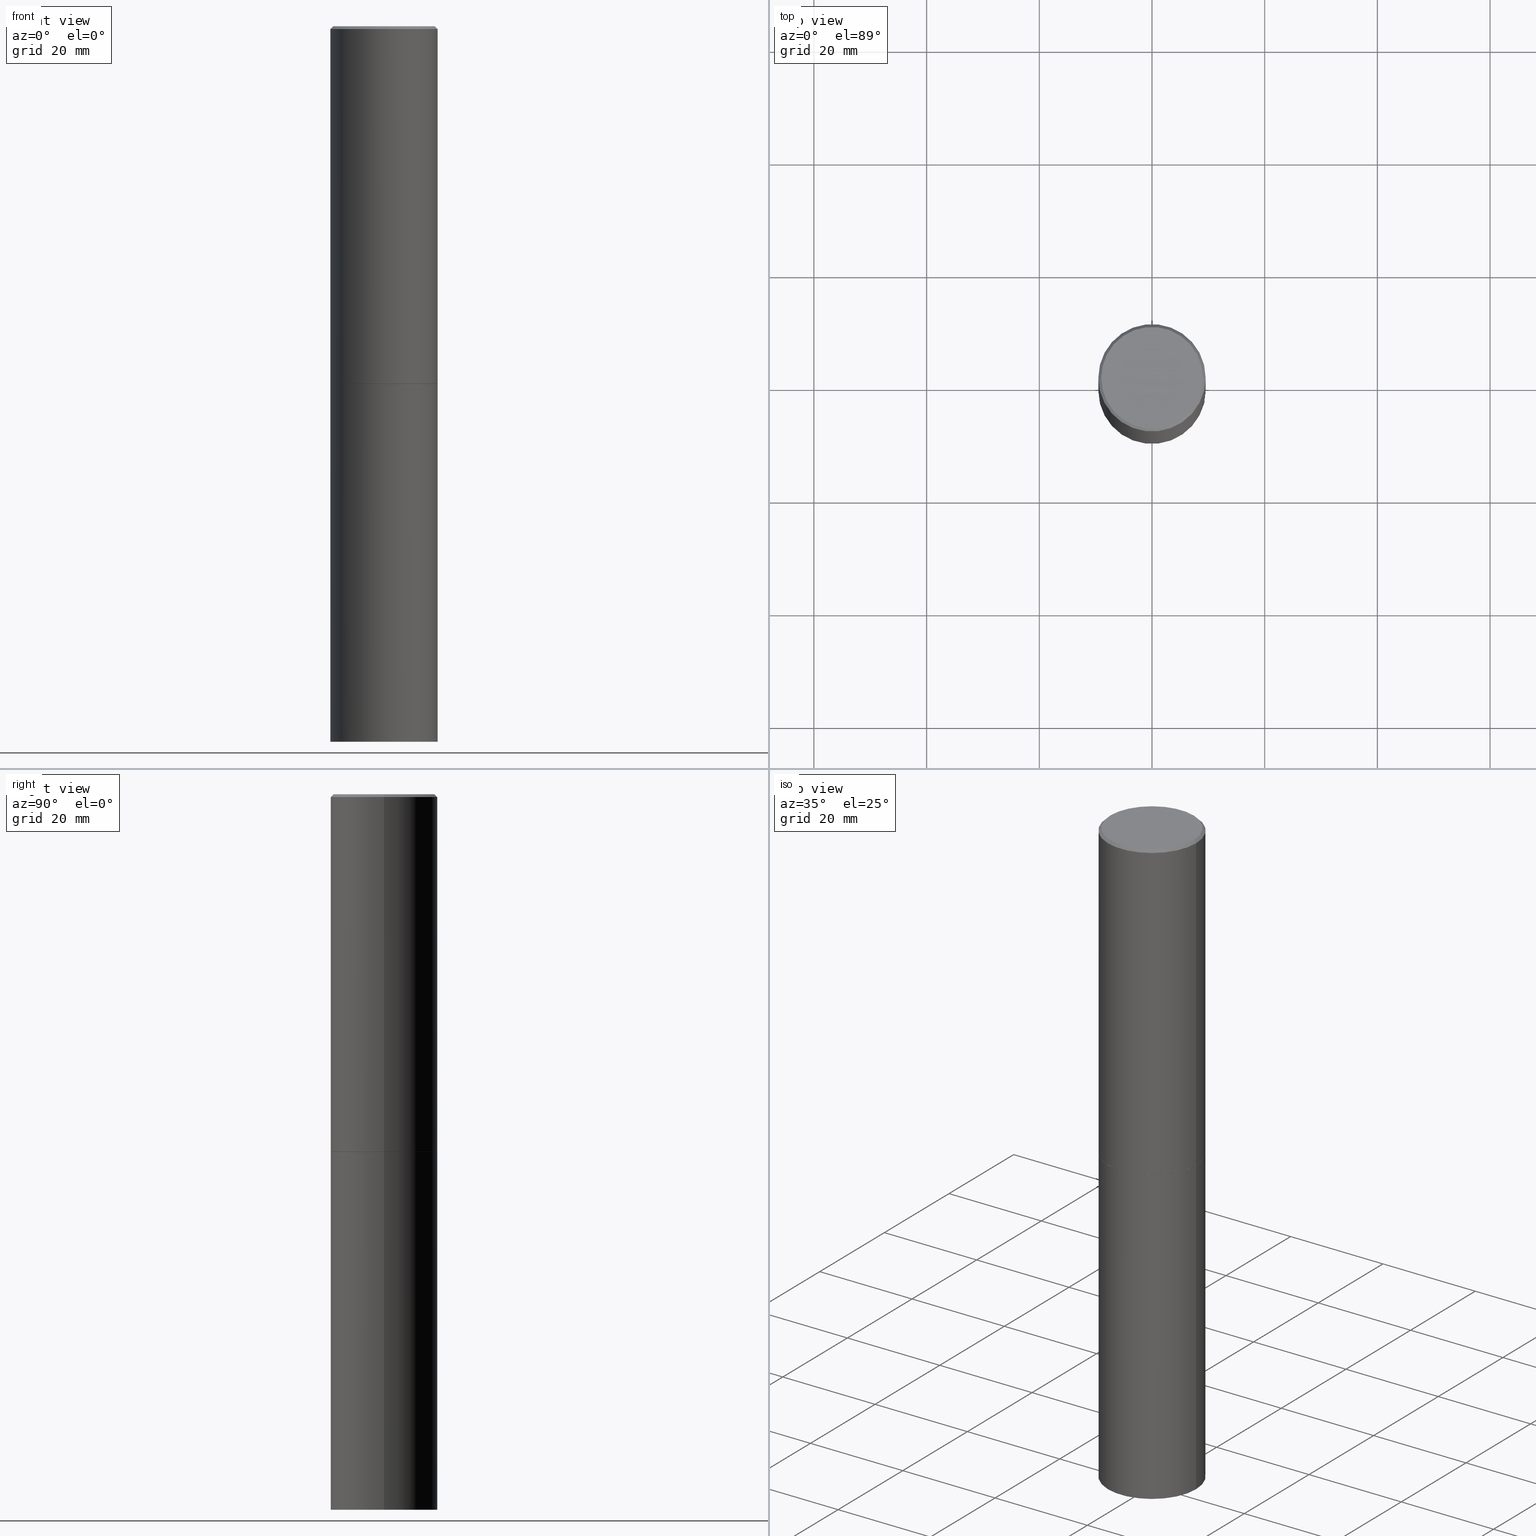
[diagram: canonical four-view strip — front | top / right | iso, engineering-drawing reading convention]
A machine part, canonical four-view strip (front | top / right | iso — engineering-drawing reading convention). The complete STEP part file that produces these views, byte-faithful:
ISO-10303-21;
HEADER;
FILE_DESCRIPTION (( 'STEP AP214' ),
    '1' );
FILE_NAME ('34758.STEP',
    '2024-05-03T16:23:27',
    ( '' ),
    ( '' ),
    'SwSTEP 2.0',
    'SolidWorks 2023',
    '' );
FILE_SCHEMA (( 'AUTOMOTIVE_DESIGN' ));
ENDSEC;

DATA;
#1 = CLOSED_SHELL ( 'NONE', ( #165, #99, #106, #232 ) ) ;
#2 = DIRECTION ( 'NONE',  ( -2.445468806185136597E-29, 3.491481338843145583E-15, 1.000000000000000000 ) ) ;
#3 = EDGE_LOOP ( 'NONE', ( #44, #196, #18, #119 ) ) ;
#4 = DIMENSIONAL_EXPONENTS ( 1.000000000000000000, 0.000000000000000000, 0.000000000000000000, 0.000000000000000000, 0.000000000000000000, 0.000000000000000000, 0.000000000000000000 ) ;
#5 =( NAMED_UNIT ( * ) SI_UNIT ( $, .STERADIAN. ) SOLID_ANGLE_UNIT ( ) );
#6 = PLANE ( 'NONE',  #245 ) ;
#7 = DIRECTION ( 'NONE',  ( -1.000000000000000000, 6.982962677686265922E-15, -4.876176775795935793E-29 ) ) ;
#8 = DIRECTION ( 'NONE',  ( 1.000000000000000000, -6.982962677686265922E-15, 4.876176775795935793E-29 ) ) ;
#9 = AXIS2_PLACEMENT_3D ( 'NONE', #180, #10, #185 ) ;
#10 = DIRECTION ( 'NONE',  ( -2.445468806185136597E-29, 3.491481338843145583E-15, 1.000000000000000000 ) ) ;
#11 = LINE ( 'NONE', #322, #63 ) ;
#12 =( LENGTH_UNIT ( ) NAMED_UNIT ( * ) SI_UNIT ( $, .METRE. ) );
#13 = CARTESIAN_POINT ( 'NONE',  ( 2.478951750578623026E-15, 0.3549999999999997602, -1.228804594064064785E-15 ) ) ;
#14 = CONICAL_SURFACE ( 'NONE', #39, 0.3749999999999997780, 0.7853981633974456145 ) ;
#15 = FACE_OUTER_BOUND ( 'NONE', #113, .T. ) ;
#16 = AXIS2_PLACEMENT_3D ( 'NONE', #265, #132, #150 ) ;
#17 = DIRECTION ( 'NONE',  ( -2.445468806185136597E-29, 3.491481338843145583E-15, 1.000000000000000000 ) ) ;
#18 = ORIENTED_EDGE ( 'NONE', *, *, #292, .T. ) ;
#19 = LENGTH_MEASURE_WITH_UNIT ( LENGTH_MEASURE( 0.02539999999999999897 ), #146 );
#20 = ORIENTED_EDGE ( 'NONE', *, *, #290, .T. ) ;
#21 = EDGE_CURVE ( 'NONE', #319, #22, #202, .T. ) ;
#22 = VERTEX_POINT ( 'NONE', #310 ) ;
#23 = DIRECTION ( 'NONE',  ( -2.445468806185136877E-29, 3.491481338843145188E-15, 1.000000000000000000 ) ) ;
#24 = EDGE_LOOP ( 'NONE', ( #53, #252, #329, #172 ) ) ;
#25 = ADVANCED_FACE ( 'NONE', ( #181 ), #287, .F. ) ;
#26 = PRODUCT_DEFINITION_CONTEXT ( 'detailed design', #117, 'design' ) ;
#27 = LINE ( 'NONE', #283, #178 ) ;
#28 = DIRECTION ( 'NONE',  ( -1.000000000000000000, 6.982962677686265922E-15, 0.000000000000000000 ) ) ;
#29 = FACE_OUTER_BOUND ( 'NONE', #145, .T. ) ;
#30 = EDGE_CURVE ( 'NONE', #328, #100, #192, .T. ) ;
#31 = DIRECTION ( 'NONE',  ( 2.445468806185136597E-29, -3.491481338843145583E-15, -1.000000000000000000 ) ) ;
#32 = AXIS2_PLACEMENT_3D ( 'NONE', #312, #87, #288 ) ;
#33 = UNCERTAINTY_MEASURE_WITH_UNIT (LENGTH_MEASURE( 1.000000000000000082E-05 ), #114, 'distance_accuracy_value', 'NONE');
#34 = DIRECTION ( 'NONE',  ( 1.000000000000000000, -6.982962677686266711E-15, 0.000000000000000000 ) ) ;
#35 = MANIFOLD_SOLID_BREP ( 'Body-Move/Copy2[2]', #109 ) ;
#36 = SURFACE_STYLE_USAGE ( .BOTH. , #67 ) ;
#37 = CARTESIAN_POINT ( 'NONE',  ( 4.890937612370292426E-31, -6.982962677686317493E-17, -0.02000000000000007674 ) ) ;
#38 = DIRECTION ( 'NONE',  ( 2.438088387897960049E-29, -3.491481338843145188E-15, -1.000000000000000000 ) ) ;
#39 = AXIS2_PLACEMENT_3D ( 'NONE', #263, #31, #131 ) ;
#40 = DIRECTION ( 'NONE',  ( 1.000000000000000000, -6.982962677686264344E-15, 0.000000000000000000 ) ) ;
#41 = CARTESIAN_POINT ( 'NONE',  ( 4.890937612370292426E-31, -6.982962677686317493E-17, -0.02000000000000007674 ) ) ;
#42 = DIRECTION ( 'NONE',  ( -1.000000000000000000, 6.982962677686265922E-15, -4.876176775795935793E-29 ) ) ;
#43 = ORIENTED_EDGE ( 'NONE', *, *, #334, .T. ) ;
#44 = ORIENTED_EDGE ( 'NONE', *, *, #21, .F. ) ;
#45 = VERTEX_POINT ( 'NONE', #82 ) ;
#46 = ADVANCED_FACE ( 'NONE', ( #286 ), #62, .T. ) ;
#47 = ORIENTED_EDGE ( 'NONE', *, *, #151, .F. ) ;
#48 = ORIENTED_EDGE ( 'NONE', *, *, #334, .F. ) ;
#49 = CARTESIAN_POINT ( 'NONE',  ( 1.222734403092568523E-28, -1.745740669421572989E-14, -5.000000000000000000 ) ) ;
#50 = ORIENTED_EDGE ( 'NONE', *, *, #236, .T. ) ;
#51 = DIRECTION ( 'NONE',  ( 1.000000000000000000, -6.982962677686266711E-15, 0.000000000000000000 ) ) ;
#52 = CARTESIAN_POINT ( 'NONE',  ( 0.000000000000000000, 0.000000000000000000, 0.000000000000000000 ) ) ;
#53 = ORIENTED_EDGE ( 'NONE', *, *, #226, .T. ) ;
#54 = AXIS2_PLACEMENT_3D ( 'NONE', #37, #161, #111 ) ;
#55 = CARTESIAN_POINT ( 'NONE',  ( 4.890937612370292426E-31, -6.982962677686317493E-17, -0.02000000000000007674 ) ) ;
#56 = AXIS2_PLACEMENT_3D ( 'NONE', #71, #17, #327 ) ;
#57 = STYLED_ITEM ( 'NONE', ( #188 ), #254 ) ;
#58 = ADVANCED_FACE ( 'NONE', ( #207 ), #173, .T. ) ;
#59 = CARTESIAN_POINT ( 'NONE',  ( 0.3750000000000000555, -1.134382286990137353E-14, -2.499000000000000998 ) ) ;
#60 = UNCERTAINTY_MEASURE_WITH_UNIT (LENGTH_MEASURE( 1.000000000000000082E-05 ), #98, 'distance_accuracy_value', 'NONE');
#61 = CARTESIAN_POINT ( 'NONE',  ( -0.3749999999999997780, 2.548781377355484746E-15, -0.02000000000000007674 ) ) ;
#62 = CYLINDRICAL_SURFACE ( 'NONE', #32, 0.3749999999999998890 ) ;
#63 = VECTOR ( 'NONE', #64, 39.37007874015748143 ) ;
#64 = DIRECTION ( 'NONE',  ( -2.445468806185136877E-29, 3.491481338843145188E-15, 1.000000000000000000 ) ) ;
#65 = CYLINDRICAL_SURFACE ( 'NONE', #275, 0.3750000000000000555 ) ;
#66 = CARTESIAN_POINT ( 'NONE',  ( 0.000000000000000000, 0.000000000000000000, 0.000000000000000000 ) ) ;
#67 = SURFACE_SIDE_STYLE ('',( #187 ) ) ;
#68 = FACE_OUTER_BOUND ( 'NONE', #194, .T. ) ;
#69 = FACE_OUTER_BOUND ( 'NONE', #78, .T. ) ;
#70 = APPLICATION_PROTOCOL_DEFINITION ( 'draft international standard', 'automotive_design', 1998, #257 ) ;
#71 = CARTESIAN_POINT ( 'NONE',  ( 6.113672015462842613E-29, -8.728703347107864943E-15, -2.500000000000000000 ) ) ;
#72 = EDGE_CURVE ( 'NONE', #74, #45, #218, .T. ) ;
#73 = PRODUCT_DEFINITION_FORMATION_WITH_SPECIFIED_SOURCE ( 'ANY', '', #225, .NOT_KNOWN. ) ;
#74 = VERTEX_POINT ( 'NONE', #182 ) ;
#75 = DIRECTION ( 'NONE',  ( 1.000000000000000000, 0.000000000000000000, 0.000000000000000000 ) ) ;
#76 = ORIENTED_EDGE ( 'NONE', *, *, #83, .F. ) ;
#77 =( NAMED_UNIT ( * ) PLANE_ANGLE_UNIT ( ) SI_UNIT ( $, .RADIAN. ) );
#78 = EDGE_LOOP ( 'NONE', ( #121, #136, #20, #168 ) ) ;
#79 = CARTESIAN_POINT ( 'NONE',  ( 0.000000000000000000, 0.000000000000000000, 0.000000000000000000 ) ) ;
#80 = COLOUR_RGB ( '',0.7921568627450980005, 0.8196078431372548767, 0.9333333333333333481 ) ;
#81 = EDGE_CURVE ( 'NONE', #74, #22, #262, .T. ) ;
#82 = CARTESIAN_POINT ( 'NONE',  ( 0.3549999999999997602, -2.538996582575039076E-15, 2.134256245051960239E-17 ) ) ;
#83 = EDGE_CURVE ( 'NONE', #147, #319, #209, .T. ) ;
#84 = DIRECTION ( 'NONE',  ( 1.000000000000000000, -6.982962677686264344E-15, 0.000000000000000000 ) ) ;
#85 =( GEOMETRIC_REPRESENTATION_CONTEXT ( 3 ) GLOBAL_UNCERTAINTY_ASSIGNED_CONTEXT ( ( #60 ) ) GLOBAL_UNIT_ASSIGNED_CONTEXT ( ( #98, #77, #251 ) ) REPRESENTATION_CONTEXT ( 'NONE', 'WORKASPACE' ) );
#86 = AXIS2_PLACEMENT_3D ( 'NONE', #158, #108, #156 ) ;
#87 = DIRECTION ( 'NONE',  ( -2.445468806185136597E-29, 3.491481338843145583E-15, 1.000000000000000000 ) ) ;
#88 = CARTESIAN_POINT ( 'NONE',  ( 2.618611004132411153E-15, 0.3749999999999912847, -2.500000000000001332 ) ) ;
#89 = CYLINDRICAL_SURFACE ( 'NONE', #284, 0.3749999999999998890 ) ;
#90 = EDGE_CURVE ( 'NONE', #272, #323, #127, .T. ) ;
#91 =( GEOMETRIC_REPRESENTATION_CONTEXT ( 3 ) GLOBAL_UNCERTAINTY_ASSIGNED_CONTEXT ( ( #311 ) ) GLOBAL_UNIT_ASSIGNED_CONTEXT ( ( #325, #213, #5 ) ) REPRESENTATION_CONTEXT ( 'NONE', 'WORKASPACE' ) );
#92 = SURFACE_STYLE_USAGE ( .BOTH. , #240 ) ;
#93 = ADVANCED_FACE ( 'NONE', ( #107 ), #14, .T. ) ;
#94 = DIRECTION ( 'NONE',  ( 1.000000000000000000, -6.982962677686265922E-15, 0.000000000000000000 ) ) ;
#95 = DIRECTION ( 'NONE',  ( -2.445468806185136597E-29, 3.491481338843145583E-15, 1.000000000000000000 ) ) ;
#96 =( NAMED_UNIT ( * ) PLANE_ANGLE_UNIT ( ) SI_UNIT ( $, .RADIAN. ) );
#97 = ORIENTED_EDGE ( 'NONE', *, *, #83, .T. ) ;
#98 =( CONVERSION_BASED_UNIT ( 'INCH', #19 ) LENGTH_UNIT ( ) NAMED_UNIT ( #195 ) );
#99 = ADVANCED_FACE ( 'NONE', ( #29 ), #6, .T. ) ;
#100 = VERTEX_POINT ( 'NONE', #203 ) ;
#101 =( GEOMETRIC_REPRESENTATION_CONTEXT ( 3 ) GLOBAL_UNCERTAINTY_ASSIGNED_CONTEXT ( ( #33 ) ) GLOBAL_UNIT_ASSIGNED_CONTEXT ( ( #114, #96, #318 ) ) REPRESENTATION_CONTEXT ( 'NONE', 'WORKASPACE' ) );
#102 = CARTESIAN_POINT ( 'NONE',  ( -0.3750000000000000555, -1.042851976156142014E-14, -2.500000000000000000 ) ) ;
#103 = CIRCLE ( 'NONE', #139, 0.3750000000000000555 ) ;
#104 = AXIS2_PLACEMENT_3D ( 'NONE', #88, #235, #7 ) ;
#105 = DIRECTION ( 'NONE',  ( -0.7071067811870063169, 7.493145998872012346E-15, 0.7071067811860887176 ) ) ;
#106 = ADVANCED_FACE ( 'NONE', ( #184 ), #153, .F. ) ;
#107 = FACE_OUTER_BOUND ( 'NONE', #300, .T. ) ;
#108 = DIRECTION ( 'NONE',  ( -2.445468806185136597E-29, 3.491481338843145583E-15, 1.000000000000000000 ) ) ;
#109 = CLOSED_SHELL ( 'NONE', ( #58, #46, #144, #93, #120, #241, #204, #25 ) ) ;
#110 = CARTESIAN_POINT ( 'NONE',  ( 1.222734403092568523E-28, -1.745740669421572989E-14, -5.000000000000000000 ) ) ;
#111 = DIRECTION ( 'NONE',  ( 1.000000000000000000, -6.982962677686265922E-15, 0.000000000000000000 ) ) ;
#112 = CARTESIAN_POINT ( 'NONE',  ( 0.3739999999999999991, -1.134033138856252737E-14, -2.499999999999999556 ) ) ;
#113 = EDGE_LOOP ( 'NONE', ( #278, #48 ) ) ;
#114 =( CONVERSION_BASED_UNIT ( 'INCH', #324 ) LENGTH_UNIT ( ) NAMED_UNIT ( #304 ) );
#115 = VECTOR ( 'NONE', #289, 39.37007874015748854 ) ;
#116 = PLANE ( 'NONE',  #193 ) ;
#117 = APPLICATION_CONTEXT ( 'automotive_design' ) ;
#118 = LENGTH_MEASURE_WITH_UNIT ( LENGTH_MEASURE( 0.02539999999999999897 ), #162 );
#119 = ORIENTED_EDGE ( 'NONE', *, *, #174, .F. ) ;
#120 = ADVANCED_FACE ( 'NONE', ( #315 ), #89, .T. ) ;
#121 = ORIENTED_EDGE ( 'NONE', *, *, #269, .F. ) ;
#122 = ORIENTED_EDGE ( 'NONE', *, *, #226, .F. ) ;
#123 = CARTESIAN_POINT ( 'NONE',  ( 0.3749999999999998890, -2.618611004132349228E-15, 1.828566290923475362E-29 ) ) ;
#124 = EDGE_CURVE ( 'NONE', #45, #247, #27, .T. ) ;
#125 = ORIENTED_EDGE ( 'NONE', *, *, #290, .F. ) ;
#126 = APPLICATION_PROTOCOL_DEFINITION ( 'draft international standard', 'automotive_design', 1998, #117 ) ;
#127 = CIRCLE ( 'NONE', #332, 0.3750000000000000555 ) ;
#128 = EDGE_CURVE ( 'NONE', #301, #147, #205, .T. ) ;
#129 = DIRECTION ( 'NONE',  ( 0.7071067811865455743, -7.319954787623248157E-15, -0.7071067811865493491 ) ) ;
#130 = CARTESIAN_POINT ( 'NONE',  ( -0.3739999999999999991, -6.065975061016867852E-15, -2.499999999999999556 ) ) ;
#131 = DIRECTION ( 'NONE',  ( -1.000000000000000000, 6.982962677686265922E-15, 0.000000000000000000 ) ) ;
#132 = DIRECTION ( 'NONE',  ( -2.445468806185136597E-29, 3.491481338843145583E-15, 1.000000000000000000 ) ) ;
#133 = MECHANICAL_DESIGN_GEOMETRIC_PRESENTATION_REPRESENTATION (  '', ( #306 ), #91 ) ;
#134 = CARTESIAN_POINT ( 'NONE',  ( 2.618611004132472290E-15, 0.3749999999999825695, -5.000000000000000888 ) ) ;
#135 = DIRECTION ( 'NONE',  ( 1.000000000000000000, -6.982962677686265922E-15, 4.876176775795935793E-29 ) ) ;
#136 = ORIENTED_EDGE ( 'NONE', *, *, #313, .T. ) ;
#137 = CARTESIAN_POINT ( 'NONE',  ( 6.113672015462842613E-29, -8.728703347107864943E-15, -2.500000000000000000 ) ) ;
#138 = PRODUCT_RELATED_PRODUCT_CATEGORY ( 'part', '', ( #225 ) ) ;
#139 = AXIS2_PLACEMENT_3D ( 'NONE', #49, #296, #51 ) ;
#140 = DIRECTION ( 'NONE',  ( 0.7071067811870063169, -2.468850131087062801E-15, 0.7071067811860887176 ) ) ;
#141 = VERTEX_POINT ( 'NONE', #59 ) ;
#142 = CARTESIAN_POINT ( 'NONE',  ( 0.3750000000000000555, -2.007601769834807990E-14, -5.000000000000000000 ) ) ;
#143 = CONICAL_SURFACE ( 'NONE', #333, 0.3749999999999997780, 0.7853981633974456145 ) ;
#144 = ADVANCED_FACE ( 'NONE', ( #175 ), #143, .T. ) ;
#145 = EDGE_LOOP ( 'NONE', ( #253, #279 ) ) ;
#146 =( LENGTH_UNIT ( ) NAMED_UNIT ( * ) SI_UNIT ( $, .METRE. ) );
#147 = VERTEX_POINT ( 'NONE', #130 ) ;
#148 = ORIENTED_EDGE ( 'NONE', *, *, #157, .F. ) ;
#149 = PRODUCT_DEFINITION_SHAPE ( 'NONE', 'NONE',  #216 ) ;
#150 = DIRECTION ( 'NONE',  ( 1.000000000000000000, -6.982962677686266711E-15, 4.876231632511991546E-29 ) ) ;
#151 = EDGE_CURVE ( 'NONE', #319, #141, #316, .T. ) ;
#152 = COLOUR_RGB ( '',0.7921568627450980005, 0.8196078431372548767, 0.9333333333333333481 ) ;
#153 = PLANE ( 'NONE',  #104 ) ;
#154 = ORIENTED_EDGE ( 'NONE', *, *, #280, .T. ) ;
#155 = DIRECTION ( 'NONE',  ( -2.445468806185136597E-29, 3.491481338843145583E-15, 1.000000000000000000 ) ) ;
#156 = DIRECTION ( 'NONE',  ( 1.000000000000000000, -6.982962677686268288E-15, 0.000000000000000000 ) ) ;
#157 = EDGE_CURVE ( 'NONE', #45, #74, #176, .T. ) ;
#158 = CARTESIAN_POINT ( 'NONE',  ( 6.113672015462840371E-29, -8.728703347107863365E-15, -2.499999999999999556 ) ) ;
#159 = DIRECTION ( 'NONE',  ( 1.000000000000000000, -6.982962677686264344E-15, 0.000000000000000000 ) ) ;
#160 = EDGE_CURVE ( 'NONE', #301, #141, #320, .T. ) ;
#161 = DIRECTION ( 'NONE',  ( -2.445468806185136597E-29, 3.491481338843145583E-15, 1.000000000000000000 ) ) ;
#162 =( LENGTH_UNIT ( ) NAMED_UNIT ( * ) SI_UNIT ( $, .METRE. ) );
#163 = CYLINDRICAL_SURFACE ( 'NONE', #258, 0.3750000000000000555 ) ;
#164 = DIRECTION ( 'NONE',  ( -2.445468806185136597E-29, 3.491481338843145583E-15, 1.000000000000000000 ) ) ;
#165 = ADVANCED_FACE ( 'NONE', ( #295 ), #163, .T. ) ;
#166 = ORIENTED_EDGE ( 'NONE', *, *, #124, .F. ) ;
#167 = AXIS2_PLACEMENT_3D ( 'NONE', #219, #186, #271 ) ;
#168 = ORIENTED_EDGE ( 'NONE', *, *, #30, .F. ) ;
#169 = ORIENTED_EDGE ( 'NONE', *, *, #72, .F. ) ;
#170 = ORIENTED_EDGE ( 'NONE', *, *, #269, .T. ) ;
#171 = CIRCLE ( 'NONE', #177, 0.3750000000000000555 ) ;
#172 = ORIENTED_EDGE ( 'NONE', *, *, #292, .F. ) ;
#173 = CONICAL_SURFACE ( 'NONE', #86, 0.3739999999999999991, 0.7853981633980972044 ) ;
#174 = EDGE_CURVE ( 'NONE', #22, #247, #229, .T. ) ;
#175 = FACE_OUTER_BOUND ( 'NONE', #277, .T. ) ;
#176 = CIRCLE ( 'NONE', #9, 0.3549999999999997602 ) ;
#177 = AXIS2_PLACEMENT_3D ( 'NONE', #215, #95, #159 ) ;
#178 = VECTOR ( 'NONE', #129, 39.37007874015748854 ) ;
#179 = PRESENTATION_LAYER_ASSIGNMENT (  '', '', ( #57 ) ) ;
#180 = CARTESIAN_POINT ( 'NONE',  ( -5.219257071676098903E-46, 7.451715851902235727E-32, 2.134256245050205639E-17 ) ) ;
#181 = FACE_OUTER_BOUND ( 'NONE', #221, .T. ) ;
#182 = CARTESIAN_POINT ( 'NONE',  ( -0.3549999999999997602, 2.513866563967053491E-15, 2.134256245048459668E-17 ) ) ;
#183 = CARTESIAN_POINT ( 'NONE',  ( -0.3739999999999999991, -6.071273515365087887E-15, -2.499999999999999556 ) ) ;
#184 = FACE_OUTER_BOUND ( 'NONE', #326, .T. ) ;
#185 = DIRECTION ( 'NONE',  ( 1.000000000000000000, -6.982962677686266711E-15, 4.876231632511991546E-29 ) ) ;
#186 = DIRECTION ( 'NONE',  ( -2.445468806185136597E-29, 3.491481338843145583E-15, 1.000000000000000000 ) ) ;
#187 = SURFACE_STYLE_FILL_AREA ( #270 ) ;
#188 = PRESENTATION_STYLE_ASSIGNMENT (( #92 ) ) ;
#189 = DIRECTION ( 'NONE',  ( -2.445468806185136597E-29, 3.491481338843145583E-15, 1.000000000000000000 ) ) ;
#190 = LINE ( 'NONE', #123, #244 ) ;
#191 = AXIS2_PLACEMENT_3D ( 'NONE', #41, #243, #94 ) ;
#192 = CIRCLE ( 'NONE', #56, 0.3750000000000000555 ) ;
#193 = AXIS2_PLACEMENT_3D ( 'NONE', #137, #294, #238 ) ;
#194 = EDGE_LOOP ( 'NONE', ( #76, #43, #220, #47 ) ) ;
#195 = DIMENSIONAL_EXPONENTS ( 1.000000000000000000, 0.000000000000000000, 0.000000000000000000, 0.000000000000000000, 0.000000000000000000, 0.000000000000000000, 0.000000000000000000 ) ;
#196 = ORIENTED_EDGE ( 'NONE', *, *, #151, .T. ) ;
#197 = CARTESIAN_POINT ( 'NONE',  ( -0.3750000000000000555, -1.732985487172565737E-15, -2.499000000000000998 ) ) ;
#198 = ORIENTED_EDGE ( 'NONE', *, *, #81, .F. ) ;
#199 = ADVANCED_BREP_SHAPE_REPRESENTATION ( '34758', ( #254, #35, #228 ), #85 ) ;
#200 = AXIS2_PLACEMENT_3D ( 'NONE', #230, #2, #307 ) ;
#201 = DIRECTION ( 'NONE',  ( -2.445468806185136597E-29, 3.491481338843145583E-15, 1.000000000000000000 ) ) ;
#202 = LINE ( 'NONE', #233, #309 ) ;
#203 = CARTESIAN_POINT ( 'NONE',  ( 0.3750000000000000555, -1.134731435124021338E-14, -2.500000000000000000 ) ) ;
#204 = ADVANCED_FACE ( 'NONE', ( #15 ), #116, .F. ) ;
#205 = CIRCLE ( 'NONE', #200, 0.3739999999999999991 ) ;
#206 = DIRECTION ( 'NONE',  ( -2.445468806185136877E-29, 3.491481338843145188E-15, 1.000000000000000000 ) ) ;
#207 = FACE_OUTER_BOUND ( 'NONE', #336, .T. ) ;
#208 = DIRECTION ( 'NONE',  ( 2.438088387897960049E-29, -3.491481338843145188E-15, -1.000000000000000000 ) ) ;
#209 = LINE ( 'NONE', #183, #285 ) ;
#210 = CIRCLE ( 'NONE', #260, 0.3750000000000000555 ) ;
#211 = CIRCLE ( 'NONE', #264, 0.3739999999999999991 ) ;
#212 = FILL_AREA_STYLE ('',( #268 ) ) ;
#213 =( NAMED_UNIT ( * ) PLANE_ANGLE_UNIT ( ) SI_UNIT ( $, .RADIAN. ) );
#214 = CARTESIAN_POINT ( 'NONE',  ( 6.111226546656659252E-29, -8.725211865769023513E-15, -2.499000000000000998 ) ) ;
#215 = CARTESIAN_POINT ( 'NONE',  ( 6.113672015462842613E-29, -8.728703347107864943E-15, -2.500000000000000000 ) ) ;
#216 = PRODUCT_DEFINITION ( 'UNKNOWN', '', #73, #26 ) ;
#217 = ORIENTED_EDGE ( 'NONE', *, *, #90, .T. ) ;
#218 = CIRCLE ( 'NONE', #16, 0.3549999999999997602 ) ;
#219 = CARTESIAN_POINT ( 'NONE',  ( 6.113672015462840371E-29, -8.728703347107863365E-15, -2.499999999999999556 ) ) ;
#220 = ORIENTED_EDGE ( 'NONE', *, *, #160, .T. ) ;
#221 = EDGE_LOOP ( 'NONE', ( #259, #302 ) ) ;
#222 = VECTOR ( 'NONE', #23, 39.37007874015748143 ) ;
#223 = VECTOR ( 'NONE', #140, 39.37007874015748143 ) ;
#224 = CARTESIAN_POINT ( 'NONE',  ( -0.3750000000000000555, -1.042851976156142014E-14, -5.000000000000000000 ) ) ;
#225 = PRODUCT ( '34758', '34758', '', ( #273 ) ) ;
#226 = EDGE_CURVE ( 'NONE', #141, #319, #210, .T. ) ;
#227 = DIRECTION ( 'NONE',  ( -2.445468806185136597E-29, 3.491481338843145583E-15, 1.000000000000000000 ) ) ;
#228 = AXIS2_PLACEMENT_3D ( 'NONE', #79, #337, #75 ) ;
#229 = CIRCLE ( 'NONE', #191, 0.3749999999999997780 ) ;
#230 = CARTESIAN_POINT ( 'NONE',  ( 6.113672015462840371E-29, -8.728703347107863365E-15, -2.499999999999999556 ) ) ;
#231 = CARTESIAN_POINT ( 'NONE',  ( 6.111226546656659252E-29, -8.725211865769023513E-15, -2.499000000000000998 ) ) ;
#232 = ADVANCED_FACE ( 'NONE', ( #69 ), #65, .T. ) ;
#233 = CARTESIAN_POINT ( 'NONE',  ( -0.3749999999999998890, 2.664535259100374908E-15, -1.844600658845589038E-29 ) ) ;
#234 = AXIS2_PLACEMENT_3D ( 'NONE', #13, #38, #42 ) ;
#235 = DIRECTION ( 'NONE',  ( 2.438088387897960049E-29, -3.491481338843145188E-15, -1.000000000000000000 ) ) ;
#236 = EDGE_CURVE ( 'NONE', #247, #22, #298, .T. ) ;
#237 = LINE ( 'NONE', #335, #222 ) ;
#238 = DIRECTION ( 'NONE',  ( 1.000000000000000000, -6.982962677686265922E-15, 4.876176775795935793E-29 ) ) ;
#239 = MECHANICAL_DESIGN_GEOMETRIC_PRESENTATION_REPRESENTATION (  '', ( #57 ), #101 ) ;
#240 = SURFACE_SIDE_STYLE ('',( #317 ) ) ;
#241 = ADVANCED_FACE ( 'NONE', ( #68 ), #299, .T. ) ;
#242 = CARTESIAN_POINT ( 'NONE',  ( 0.3749999999999997780, -2.642516375941186056E-15, -0.02000000000000007674 ) ) ;
#243 = DIRECTION ( 'NONE',  ( -2.445468806185136597E-29, 3.491481338843145583E-15, 1.000000000000000000 ) ) ;
#244 = VECTOR ( 'NONE', #331, 39.37007874015748143 ) ;
#245 = AXIS2_PLACEMENT_3D ( 'NONE', #134, #208, #314 ) ;
#246 = AXIS2_PLACEMENT_3D ( 'NONE', #231, #308, #84 ) ;
#247 = VERTEX_POINT ( 'NONE', #242 ) ;
#248 = CARTESIAN_POINT ( 'NONE',  ( 0.3739999999999999991, -1.134033138856252737E-14, -2.499999999999999556 ) ) ;
#249 = ORIENTED_EDGE ( 'NONE', *, *, #280, .F. ) ;
#250 = ORIENTED_EDGE ( 'NONE', *, *, #124, .T. ) ;
#251 =( NAMED_UNIT ( * ) SI_UNIT ( $, .STERADIAN. ) SOLID_ANGLE_UNIT ( ) );
#252 = ORIENTED_EDGE ( 'NONE', *, *, #21, .T. ) ;
#253 = ORIENTED_EDGE ( 'NONE', *, *, #90, .F. ) ;
#254 = MANIFOLD_SOLID_BREP ( 'Body-Move/Copy2[1]', #1 ) ;
#255 = CARTESIAN_POINT ( 'NONE',  ( 6.113672015462840371E-29, -8.728703347107863365E-15, -2.499999999999999556 ) ) ;
#256 = DIRECTION ( 'NONE',  ( 1.000000000000000000, -6.982962677686266711E-15, 4.876176775795935793E-29 ) ) ;
#257 = APPLICATION_CONTEXT ( 'automotive_design' ) ;
#258 = AXIS2_PLACEMENT_3D ( 'NONE', #266, #291, #8 ) ;
#259 = ORIENTED_EDGE ( 'NONE', *, *, #72, .T. ) ;
#260 = AXIS2_PLACEMENT_3D ( 'NONE', #214, #189, #40 ) ;
#261 = DIRECTION ( 'NONE',  ( 2.445468806185136597E-29, -3.491481338843145583E-15, -1.000000000000000000 ) ) ;
#262 = LINE ( 'NONE', #61, #115 ) ;
#263 = CARTESIAN_POINT ( 'NONE',  ( 4.890937612370292426E-31, -6.982962677686317493E-17, -0.02000000000000007674 ) ) ;
#264 = AXIS2_PLACEMENT_3D ( 'NONE', #255, #227, #303 ) ;
#265 = CARTESIAN_POINT ( 'NONE',  ( -5.219257071676098903E-46, 7.451715851902235727E-32, 2.134256245050205639E-17 ) ) ;
#266 = CARTESIAN_POINT ( 'NONE',  ( 0.000000000000000000, 0.000000000000000000, 0.000000000000000000 ) ) ;
#267 = PRESENTATION_STYLE_ASSIGNMENT (( #36 ) ) ;
#268 = FILL_AREA_STYLE_COLOUR ( '', #152 ) ;
#269 = EDGE_CURVE ( 'NONE', #323, #328, #11, .T. ) ;
#270 = FILL_AREA_STYLE ('',( #274 ) ) ;
#271 = DIRECTION ( 'NONE',  ( 1.000000000000000000, -6.982962677686268288E-15, 0.000000000000000000 ) ) ;
#272 = VERTEX_POINT ( 'NONE', #142 ) ;
#273 = PRODUCT_CONTEXT ( 'NONE', #257, 'mechanical' ) ;
#274 = FILL_AREA_STYLE_COLOUR ( '', #80 ) ;
#275 = AXIS2_PLACEMENT_3D ( 'NONE', #66, #164, #135 ) ;
#276 = ORIENTED_EDGE ( 'NONE', *, *, #128, .T. ) ;
#277 = EDGE_LOOP ( 'NONE', ( #148, #250, #50, #198 ) ) ;
#278 = ORIENTED_EDGE ( 'NONE', *, *, #128, .F. ) ;
#279 = ORIENTED_EDGE ( 'NONE', *, *, #313, .F. ) ;
#280 = EDGE_CURVE ( 'NONE', #100, #328, #171, .T. ) ;
#281 = PRESENTATION_LAYER_ASSIGNMENT (  '', '', ( #306 ) ) ;
#282 = ORIENTED_EDGE ( 'NONE', *, *, #174, .T. ) ;
#283 = CARTESIAN_POINT ( 'NONE',  ( 0.3749999999999997780, -2.642516375941186056E-15, -0.02000000000000007674 ) ) ;
#284 = AXIS2_PLACEMENT_3D ( 'NONE', #52, #201, #256 ) ;
#285 = VECTOR ( 'NONE', #105, 39.37007874015748143 ) ;
#286 = FACE_OUTER_BOUND ( 'NONE', #24, .T. ) ;
#287 = PLANE ( 'NONE',  #234 ) ;
#288 = DIRECTION ( 'NONE',  ( 1.000000000000000000, -6.982962677686266711E-15, 4.876176775795935793E-29 ) ) ;
#289 = DIRECTION ( 'NONE',  ( -0.7071067811865455743, 2.468850131082236945E-15, -0.7071067811865493491 ) ) ;
#290 = EDGE_CURVE ( 'NONE', #272, #100, #237, .T. ) ;
#291 = DIRECTION ( 'NONE',  ( -2.445468806185136597E-29, 3.491481338843145583E-15, 1.000000000000000000 ) ) ;
#292 = EDGE_CURVE ( 'NONE', #141, #247, #190, .T. ) ;
#293 = EDGE_LOOP ( 'NONE', ( #217, #170, #249, #125 ) ) ;
#294 = DIRECTION ( 'NONE',  ( -2.438088387897960049E-29, 3.491481338843145188E-15, 1.000000000000000000 ) ) ;
#295 = FACE_OUTER_BOUND ( 'NONE', #293, .T. ) ;
#296 = DIRECTION ( 'NONE',  ( -2.445468806185136597E-29, 3.491481338843145583E-15, 1.000000000000000000 ) ) ;
#297 = ORIENTED_EDGE ( 'NONE', *, *, #160, .F. ) ;
#298 = CIRCLE ( 'NONE', #54, 0.3749999999999997780 ) ;
#299 = CONICAL_SURFACE ( 'NONE', #167, 0.3739999999999999991, 0.7853981633980972044 ) ;
#300 = EDGE_LOOP ( 'NONE', ( #166, #169, #330, #282 ) ) ;
#301 = VERTEX_POINT ( 'NONE', #248 ) ;
#302 = ORIENTED_EDGE ( 'NONE', *, *, #157, .T. ) ;
#303 = DIRECTION ( 'NONE',  ( 1.000000000000000000, -6.982962677686268288E-15, 0.000000000000000000 ) ) ;
#304 = DIMENSIONAL_EXPONENTS ( 1.000000000000000000, 0.000000000000000000, 0.000000000000000000, 0.000000000000000000, 0.000000000000000000, 0.000000000000000000, 0.000000000000000000 ) ;
#305 = SHAPE_DEFINITION_REPRESENTATION ( #149, #199 ) ;
#306 = STYLED_ITEM ( 'NONE', ( #267 ), #35 ) ;
#307 = DIRECTION ( 'NONE',  ( 1.000000000000000000, -6.982962677686268288E-15, 0.000000000000000000 ) ) ;
#308 = DIRECTION ( 'NONE',  ( -2.445468806185136597E-29, 3.491481338843145583E-15, 1.000000000000000000 ) ) ;
#309 = VECTOR ( 'NONE', #206, 39.37007874015748143 ) ;
#310 = CARTESIAN_POINT ( 'NONE',  ( -0.3749999999999997780, 2.548781377355484746E-15, -0.02000000000000007674 ) ) ;
#311 = UNCERTAINTY_MEASURE_WITH_UNIT (LENGTH_MEASURE( 1.000000000000000082E-05 ), #325, 'distance_accuracy_value', 'NONE');
#312 = CARTESIAN_POINT ( 'NONE',  ( 0.000000000000000000, 0.000000000000000000, 0.000000000000000000 ) ) ;
#313 = EDGE_CURVE ( 'NONE', #323, #272, #103, .T. ) ;
#314 = DIRECTION ( 'NONE',  ( -1.000000000000000000, 6.982962677686265922E-15, -4.876176775795935793E-29 ) ) ;
#315 = FACE_OUTER_BOUND ( 'NONE', #3, .T. ) ;
#316 = CIRCLE ( 'NONE', #246, 0.3750000000000000555 ) ;
#317 = SURFACE_STYLE_FILL_AREA ( #212 ) ;
#318 =( NAMED_UNIT ( * ) SI_UNIT ( $, .STERADIAN. ) SOLID_ANGLE_UNIT ( ) );
#319 = VERTEX_POINT ( 'NONE', #197 ) ;
#320 = LINE ( 'NONE', #112, #223 ) ;
#321 = ORIENTED_EDGE ( 'NONE', *, *, #30, .T. ) ;
#322 = CARTESIAN_POINT ( 'NONE',  ( -0.3750000000000000555, 2.664535259100376091E-15, -1.844600658845589598E-29 ) ) ;
#323 = VERTEX_POINT ( 'NONE', #224 ) ;
#324 = LENGTH_MEASURE_WITH_UNIT ( LENGTH_MEASURE( 0.02539999999999999897 ), #12 );
#325 =( CONVERSION_BASED_UNIT ( 'INCH', #118 ) LENGTH_UNIT ( ) NAMED_UNIT ( #4 ) );
#326 = EDGE_LOOP ( 'NONE', ( #154, #321 ) ) ;
#327 = DIRECTION ( 'NONE',  ( 1.000000000000000000, -6.982962677686264344E-15, 0.000000000000000000 ) ) ;
#328 = VERTEX_POINT ( 'NONE', #102 ) ;
#329 = ORIENTED_EDGE ( 'NONE', *, *, #236, .F. ) ;
#330 = ORIENTED_EDGE ( 'NONE', *, *, #81, .T. ) ;
#331 = DIRECTION ( 'NONE',  ( -2.445468806185136877E-29, 3.491481338843145188E-15, 1.000000000000000000 ) ) ;
#332 = AXIS2_PLACEMENT_3D ( 'NONE', #110, #155, #34 ) ;
#333 = AXIS2_PLACEMENT_3D ( 'NONE', #55, #261, #28 ) ;
#334 = EDGE_CURVE ( 'NONE', #147, #301, #211, .T. ) ;
#335 = CARTESIAN_POINT ( 'NONE',  ( 0.3750000000000000555, -2.618611004132350016E-15, 1.828566290923476203E-29 ) ) ;
#336 = EDGE_LOOP ( 'NONE', ( #276, #97, #122, #297 ) ) ;
#337 = DIRECTION ( 'NONE',  ( 0.000000000000000000, 0.000000000000000000, 1.000000000000000000 ) ) ;
ENDSEC;
END-ISO-10303-21;
